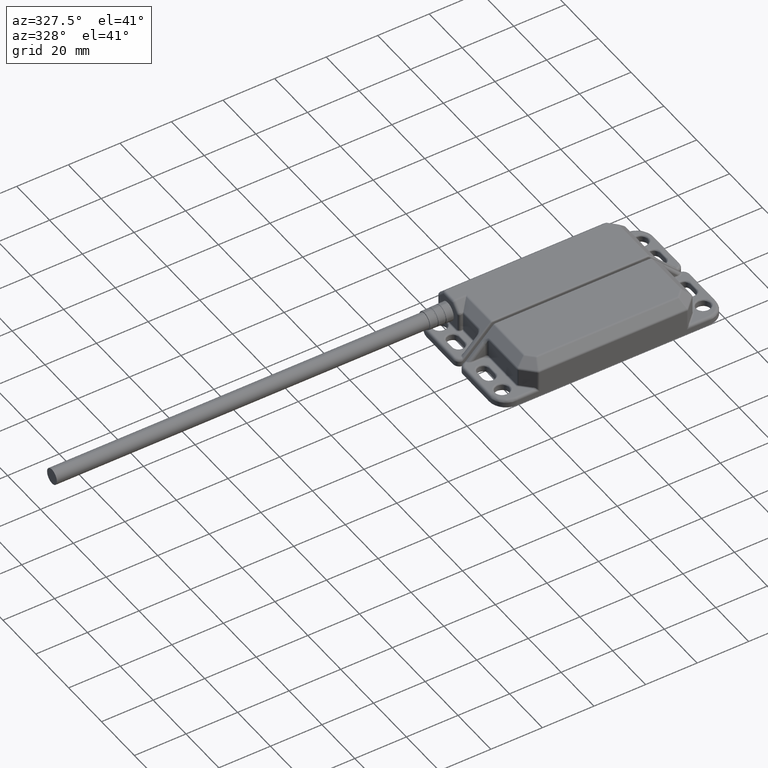
[diagram: clean part render]
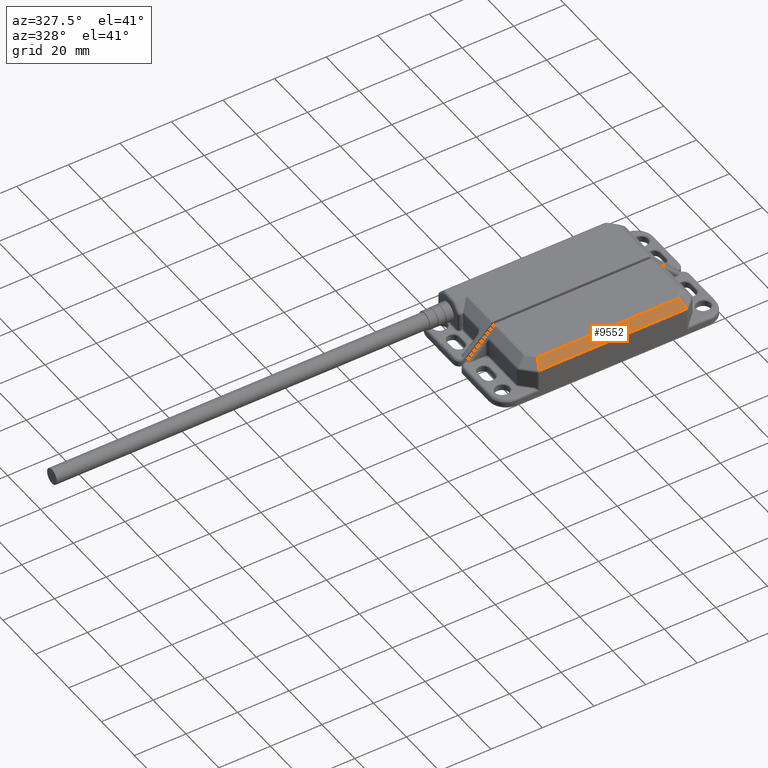
[diagram: same view with one face highlighted and labeled with its STEP entity id]
A machine part, auxiliary view. The second image highlights one B-rep face of the part: STEP entity #9552.
In plain terms, the highlighted planar face has unit normal (0, 0.7071, -0.7071).
Its self-contained STEP definition (entity closure, byte-faithful):
#21 = CARTESIAN_POINT ( 'NONE',  ( 2.857708127465625700, 0.9727207394167931600, 0.4249170558587974700 ) ) ;
#84 = VECTOR ( 'NONE', #23088, 39.37007874015748100 ) ;
#348 = CARTESIAN_POINT ( 'NONE',  ( 2.810184238442532800, 0.8579879220005292000, 0.5396498732750609800 ) ) ;
#1007 = EDGE_CURVE ( 'NONE', #5815, #23294, #8802, .T. ) ;
#1218 = ORIENTED_EDGE ( 'NONE', *, *, #13644, .F. ) ;
#3354 = VERTEX_POINT ( 'NONE', #8275 ) ;
#3572 = CARTESIAN_POINT ( 'NONE',  ( 0.0000000000000000000, 0.8464566929133853200, 0.5511811023622047400 ) ) ;
#5352 = DIRECTION ( 'NONE',  ( 0.0000000000000000000, 0.7071067811865487900, -0.7071067811865461300 ) ) ;
#5815 = VERTEX_POINT ( 'NONE', #348 ) ;
#6361 = DIRECTION ( 'NONE',  ( 1.000000000000000000, 0.0000000000000000000, 0.0000000000000000000 ) ) ;
#6775 = VECTOR ( 'NONE', #6361, 39.37007874015748100 ) ;
#7233 = VECTOR ( 'NONE', #9466, 39.37007874015748100 ) ;
#8092 = CARTESIAN_POINT ( 'NONE',  ( 0.0000000000000000000, 0.8579879220005292000, 0.5396498732750612000 ) ) ;
#8275 = CARTESIAN_POINT ( 'NONE',  ( 2.857708127465625700, 0.9727207394167931600, 0.4249170558587973500 ) ) ;
#8502 = EDGE_CURVE ( 'NONE', #9703, #3354, #8521, .T. ) ;
#8521 = LINE ( 'NONE', #15519, #6775 ) ;
#8802 = LINE ( 'NONE', #8092, #84 ) ;
#8877 = ORIENTED_EDGE ( 'NONE', *, *, #1007, .F. ) ;
#9466 = DIRECTION ( 'NONE',  ( -0.2810846377148161800, -0.6785983445458493300, 0.6785983445458464400 ) ) ;
#9552 = ADVANCED_FACE ( 'NONE', ( #22267 ), #16719, .F. ) ;
#9703 = VERTEX_POINT ( 'NONE', #17609 ) ;
#9790 = DIRECTION ( 'NONE',  ( -0.2810846377148187300, 0.6785983445458486600, -0.6785983445458458900 ) ) ;
#10605 = EDGE_LOOP ( 'NONE', ( #17111, #1218, #8877, #21552 ) ) ;
#11015 = DIRECTION ( 'NONE',  ( 0.0000000000000000000, -0.7071067811865462400, -0.7071067811865489100 ) ) ;
#12264 = VECTOR ( 'NONE', #9790, 39.37007874015748900 ) ;
#13360 = CARTESIAN_POINT ( 'NONE',  ( 0.6543826906913267100, 0.8579879220005289800, 0.5396498732750610900 ) ) ;
#13644 = EDGE_CURVE ( 'NONE', #23294, #9703, #21653, .T. ) ;
#15519 = CARTESIAN_POINT ( 'NONE',  ( 0.0000000000000000000, 0.9727207394167931600, 0.4249170558587974700 ) ) ;
#16719 = PLANE ( 'NONE',  #19824 ) ;
#17111 = ORIENTED_EDGE ( 'NONE', *, *, #8502, .F. ) ;
#17609 = CARTESIAN_POINT ( 'NONE',  ( 0.6068588016682342500, 0.9727207394167931600, 0.4249170558587973500 ) ) ;
#18036 = LINE ( 'NONE', #21, #7233 ) ;
#19617 = EDGE_CURVE ( 'NONE', #3354, #5815, #18036, .T. ) ;
#19824 = AXIS2_PLACEMENT_3D ( 'NONE', #3572, #11015, #5352 ) ;
#21552 = ORIENTED_EDGE ( 'NONE', *, *, #19617, .F. ) ;
#21653 = LINE ( 'NONE', #13360, #12264 ) ;
#22267 = FACE_OUTER_BOUND ( 'NONE', #10605, .T. ) ;
#23088 = DIRECTION ( 'NONE',  ( -1.000000000000000000, 0.0000000000000000000, 0.0000000000000000000 ) ) ;
#23294 = VERTEX_POINT ( 'NONE', #23999 ) ;
#23999 = CARTESIAN_POINT ( 'NONE',  ( 0.6543826906913263700, 0.8579879220005294200, 0.5396498732750607500 ) ) ;